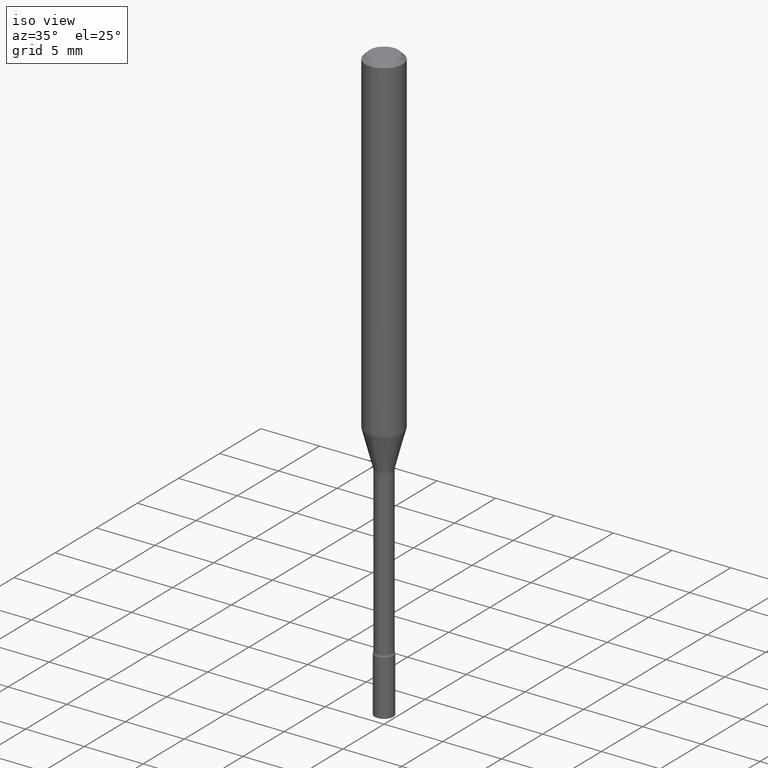
[diagram: clean part render]
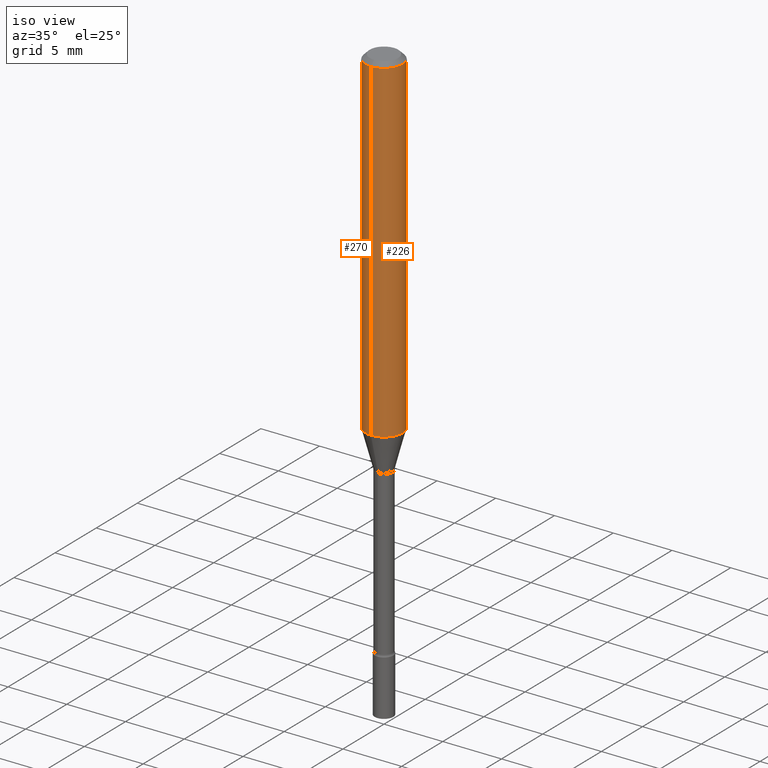
[diagram: same view with one multi-face feature highlighted, each face labeled with its STEP entity id]
A machine part, iso view. The highlighted faces form ONE feature: a constant-radius fillet chain: 2 tangent blend faces with common blend radius 1.5875 mm. The faces share edges in the B-rep.
Their STEP definitions:
[1] entity #270 (Cylinder):
#6 = EDGE_CURVE ( 'NONE', #466, #492, #23, .T. ) ;
#8 = AXIS2_PLACEMENT_3D ( 'NONE', #512, #320, #177 ) ;
#23 = CIRCLE ( 'NONE', #65, 0.06250000000000000000 ) ;
#42 = VECTOR ( 'NONE', #332, 39.37007874015748143 ) ;
#65 = AXIS2_PLACEMENT_3D ( 'NONE', #139, #371, #211 ) ;
#74 = ORIENTED_EDGE ( 'NONE', *, *, #334, .F. ) ;
#90 = CARTESIAN_POINT ( 'NONE',  ( 4.440892098500904235E-16, 0.06249999999999995143, -0.01500000000000024751 ) ) ;
#121 = CARTESIAN_POINT ( 'NONE',  ( 4.440892098500900291E-16, 0.06249999999999602401, -1.131536105567578554 ) ) ;
#131 = VECTOR ( 'NONE', #215, 39.37007874015748143 ) ;
#133 = ORIENTED_EDGE ( 'NONE', *, *, #393, .T. ) ;
#139 = CARTESIAN_POINT ( 'NONE',  ( 3.668226434848513528E-31, -5.237188747925424021E-17, -0.01500000000000003067 ) ) ;
#152 = FACE_OUTER_BOUND ( 'NONE', #451, .T. ) ;
#177 = DIRECTION ( 'NONE',  ( -6.982962677686265922E-15, -1.000000000000000000, 3.491459165283608405E-15 ) ) ;
#208 = DIRECTION ( 'NONE',  ( -2.445484289899004441E-29, 3.491459165283608799E-15, 1.000000000000000000 ) ) ;
#211 = DIRECTION ( 'NONE',  ( -6.982962677686265922E-15, -1.000000000000000000, 3.483106191921935554E-15 ) ) ;
#215 = DIRECTION ( 'NONE',  ( -2.445484289899004441E-29, 3.491459165283608405E-15, 1.000000000000000000 ) ) ;
#257 = CARTESIAN_POINT ( 'NONE',  ( -4.364351673553641579E-16, -0.06250000000000396905, -1.131536105567578110 ) ) ;
#270 = ADVANCED_FACE ( 'NONE', ( #152 ), #306, .T. ) ;
#283 = ORIENTED_EDGE ( 'NONE', *, *, #6, .F. ) ;
#292 = CIRCLE ( 'NONE', #479, 0.06250000000000000000 ) ;
#306 = CYLINDRICAL_SURFACE ( 'NONE', #8, 0.06250000000000000000 ) ;
#320 = DIRECTION ( 'NONE',  ( -2.445484289899004441E-29, 3.491459165283608799E-15, 1.000000000000000000 ) ) ;
#332 = DIRECTION ( 'NONE',  ( -2.445484289899004441E-29, 3.491459165283608405E-15, 1.000000000000000000 ) ) ;
#334 = EDGE_CURVE ( 'NONE', #423, #466, #515, .T. ) ;
#341 = VERTEX_POINT ( 'NONE', #257 ) ;
#371 = DIRECTION ( 'NONE',  ( -2.445484289899004441E-29, 3.491459165283608799E-15, 1.000000000000000000 ) ) ;
#374 = DIRECTION ( 'NONE',  ( -6.982962677686265922E-15, -1.000000000000000000, 4.370956789862821150E-15 ) ) ;
#381 = EDGE_CURVE ( 'NONE', #423, #341, #292, .T. ) ;
#390 = CARTESIAN_POINT ( 'NONE',  ( 4.440892098500625669E-16, 0.06250000000000000000, -2.182161978302255253E-16 ) ) ;
#393 = EDGE_CURVE ( 'NONE', #341, #492, #485, .T. ) ;
#405 = CARTESIAN_POINT ( 'NONE',  ( -4.364351673553916201E-16, -0.06250000000000000000, 2.182161978302255253E-16 ) ) ;
#422 = ORIENTED_EDGE ( 'NONE', *, *, #381, .T. ) ;
#423 = VERTEX_POINT ( 'NONE', #121 ) ;
#451 = EDGE_LOOP ( 'NONE', ( #74, #422, #133, #283 ) ) ;
#452 = CARTESIAN_POINT ( 'NONE',  ( 2.767153769619014423E-29, -3.950712106633242110E-15, -1.131536105567578332 ) ) ;
#466 = VERTEX_POINT ( 'NONE', #90 ) ;
#479 = AXIS2_PLACEMENT_3D ( 'NONE', #452, #208, #374 ) ;
#485 = LINE ( 'NONE', #405, #131 ) ;
#488 = CARTESIAN_POINT ( 'NONE',  ( -4.364351673553912750E-16, -0.06250000000000005551, -0.01499999999999981209 ) ) ;
#492 = VERTEX_POINT ( 'NONE', #488 ) ;
#512 = CARTESIAN_POINT ( 'NONE',  ( 0.000000000000000000, 0.000000000000000000, 0.000000000000000000 ) ) ;
#515 = LINE ( 'NONE', #390, #42 ) ;
[2] entity #226 (Cylinder):
#24 = CYLINDRICAL_SURFACE ( 'NONE', #113, 0.06250000000000000000 ) ;
#39 = DIRECTION ( 'NONE',  ( -6.982962677686265922E-15, -1.000000000000000000, 4.370956789862821150E-15 ) ) ;
#42 = VECTOR ( 'NONE', #332, 39.37007874015748143 ) ;
#51 = EDGE_LOOP ( 'NONE', ( #126, #122, #444, #241 ) ) ;
#90 = CARTESIAN_POINT ( 'NONE',  ( 4.440892098500904235E-16, 0.06249999999999995143, -0.01500000000000024751 ) ) ;
#113 = AXIS2_PLACEMENT_3D ( 'NONE', #225, #188, #502 ) ;
#121 = CARTESIAN_POINT ( 'NONE',  ( 4.440892098500900291E-16, 0.06249999999999602401, -1.131536105567578554 ) ) ;
#122 = ORIENTED_EDGE ( 'NONE', *, *, #334, .T. ) ;
#126 = ORIENTED_EDGE ( 'NONE', *, *, #475, .T. ) ;
#131 = VECTOR ( 'NONE', #215, 39.37007874015748143 ) ;
#188 = DIRECTION ( 'NONE',  ( -2.445484289899004441E-29, 3.491459165283608799E-15, 1.000000000000000000 ) ) ;
#189 = EDGE_CURVE ( 'NONE', #492, #466, #240, .T. ) ;
#202 = DIRECTION ( 'NONE',  ( -2.445484289899004441E-29, 3.491459165283608799E-15, 1.000000000000000000 ) ) ;
#215 = DIRECTION ( 'NONE',  ( -2.445484289899004441E-29, 3.491459165283608405E-15, 1.000000000000000000 ) ) ;
#225 = CARTESIAN_POINT ( 'NONE',  ( 0.000000000000000000, 0.000000000000000000, 0.000000000000000000 ) ) ;
#226 = ADVANCED_FACE ( 'NONE', ( #394 ), #24, .T. ) ;
#240 = CIRCLE ( 'NONE', #361, 0.06250000000000000000 ) ;
#241 = ORIENTED_EDGE ( 'NONE', *, *, #393, .F. ) ;
#257 = CARTESIAN_POINT ( 'NONE',  ( -4.364351673553641579E-16, -0.06250000000000396905, -1.131536105567578110 ) ) ;
#260 = DIRECTION ( 'NONE',  ( -2.445484289899004441E-29, 3.491459165283608799E-15, 1.000000000000000000 ) ) ;
#272 = DIRECTION ( 'NONE',  ( -6.982962677686265922E-15, -1.000000000000000000, 3.483106191921935554E-15 ) ) ;
#274 = AXIS2_PLACEMENT_3D ( 'NONE', #407, #260, #39 ) ;
#332 = DIRECTION ( 'NONE',  ( -2.445484289899004441E-29, 3.491459165283608405E-15, 1.000000000000000000 ) ) ;
#334 = EDGE_CURVE ( 'NONE', #423, #466, #515, .T. ) ;
#341 = VERTEX_POINT ( 'NONE', #257 ) ;
#361 = AXIS2_PLACEMENT_3D ( 'NONE', #427, #202, #272 ) ;
#390 = CARTESIAN_POINT ( 'NONE',  ( 4.440892098500625669E-16, 0.06250000000000000000, -2.182161978302255253E-16 ) ) ;
#393 = EDGE_CURVE ( 'NONE', #341, #492, #485, .T. ) ;
#394 = FACE_OUTER_BOUND ( 'NONE', #51, .T. ) ;
#405 = CARTESIAN_POINT ( 'NONE',  ( -4.364351673553916201E-16, -0.06250000000000000000, 2.182161978302255253E-16 ) ) ;
#407 = CARTESIAN_POINT ( 'NONE',  ( 2.767153769619014423E-29, -3.950712106633242110E-15, -1.131536105567578332 ) ) ;
#423 = VERTEX_POINT ( 'NONE', #121 ) ;
#427 = CARTESIAN_POINT ( 'NONE',  ( 3.668226434848513528E-31, -5.237188747925424021E-17, -0.01500000000000003067 ) ) ;
#433 = CIRCLE ( 'NONE', #274, 0.06250000000000000000 ) ;
#444 = ORIENTED_EDGE ( 'NONE', *, *, #189, .F. ) ;
#466 = VERTEX_POINT ( 'NONE', #90 ) ;
#475 = EDGE_CURVE ( 'NONE', #341, #423, #433, .T. ) ;
#485 = LINE ( 'NONE', #405, #131 ) ;
#488 = CARTESIAN_POINT ( 'NONE',  ( -4.364351673553912750E-16, -0.06250000000000005551, -0.01499999999999981209 ) ) ;
#492 = VERTEX_POINT ( 'NONE', #488 ) ;
#502 = DIRECTION ( 'NONE',  ( -6.982962677686265922E-15, -1.000000000000000000, 3.491459165283608405E-15 ) ) ;
#515 = LINE ( 'NONE', #390, #42 ) ;